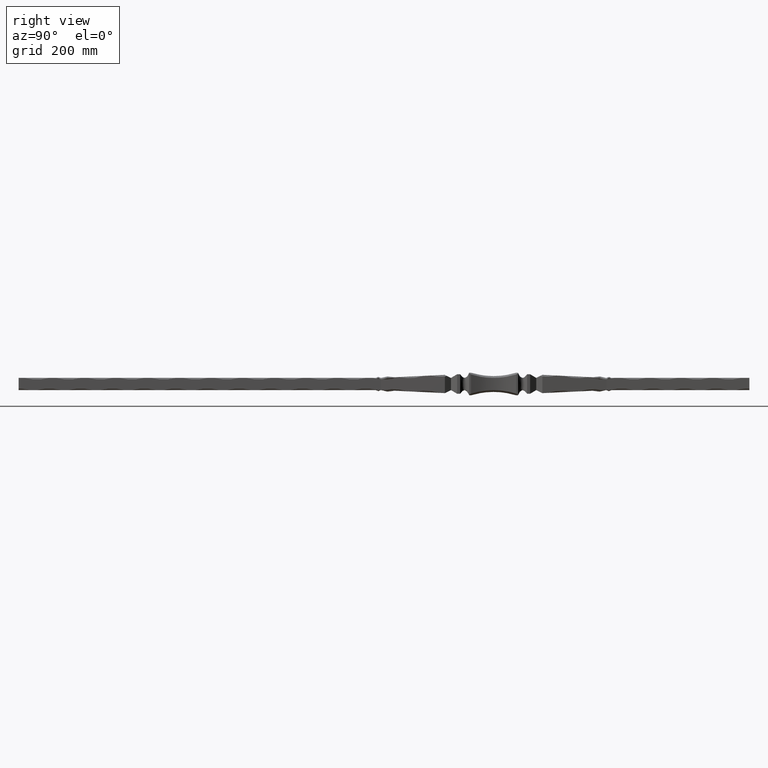
[diagram: clean part render]
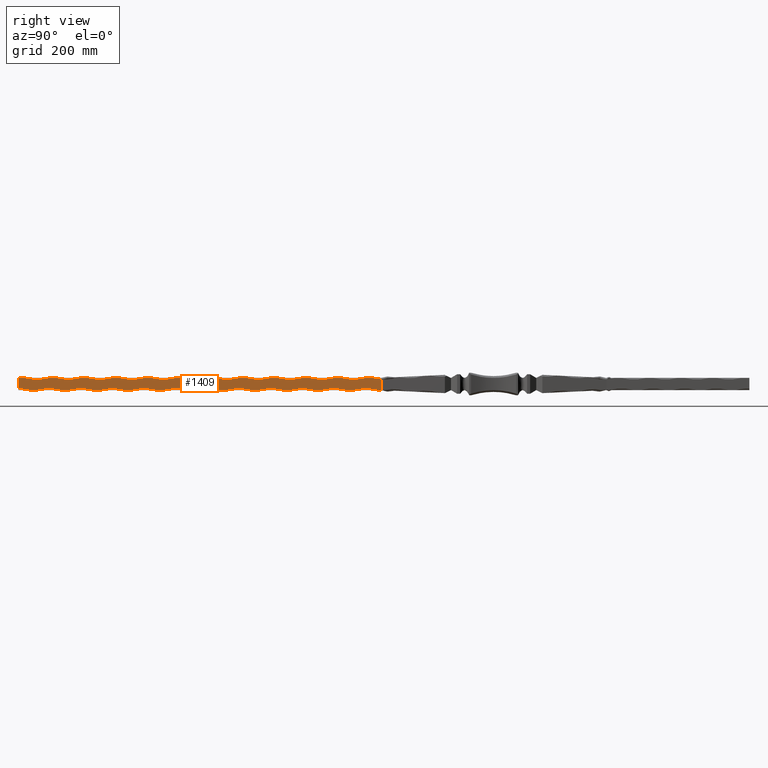
[diagram: same view with one face highlighted and labeled with its STEP entity id]
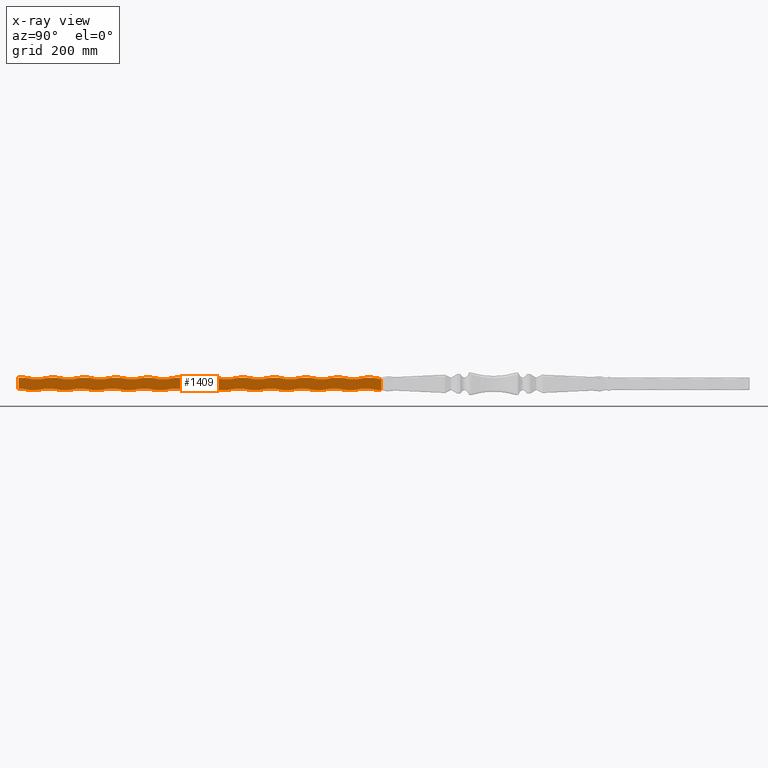
[diagram: x-ray of the same camera — body ghosted, the highlighted face saturated]
A machine part, right view. The second image highlights one B-rep face of the part: STEP entity #1409.
The next image is the same camera in x-ray: the body ghosted, the highlighted face saturated — about 0% of this face is hidden behind the body in this view.
In plain terms, the highlighted planar face has unit normal (-1, 0, 0).
Its self-contained STEP definition (entity closure, byte-faithful):
#16 = EDGE_CURVE ( 'NONE', #13468, #13027, #11197, .T. ) ;
#68 = DIRECTION ( 'NONE',  ( 0.000000000000000000, 0.000000000000000000, 1.000000000000000000 ) ) ;
#179 = AXIS2_PLACEMENT_3D ( 'NONE', #15609, #14253, #584 ) ;
#223 = DIRECTION ( 'NONE',  ( -0.000000000000000000, 0.000000000000000000, -1.000000000000000000 ) ) ;
#251 = DIRECTION ( 'NONE',  ( -1.000000000000000000, 0.000000000000000000, 0.000000000000000000 ) ) ;
#268 = AXIS2_PLACEMENT_3D ( 'NONE', #2508, #7308, #7468 ) ;
#288 = LINE ( 'NONE', #6733, #3964 ) ;
#292 = ORIENTED_EDGE ( 'NONE', *, *, #14330, .T. ) ;
#360 = DIRECTION ( 'NONE',  ( -0.000000000000000000, 1.000000000000000000, -0.000000000000000000 ) ) ;
#364 = EDGE_CURVE ( 'NONE', #14145, #10326, #4877, .T. ) ;
#422 = DIRECTION ( 'NONE',  ( -0.000000000000000000, 1.000000000000000000, -0.000000000000000000 ) ) ;
#442 = DIRECTION ( 'NONE',  ( 0.000000000000000000, 0.000000000000000000, 1.000000000000000000 ) ) ;
#443 = VECTOR ( 'NONE', #9050, 1000.000000000000000 ) ;
#449 = VERTEX_POINT ( 'NONE', #9582 ) ;
#463 = CARTESIAN_POINT ( 'NONE',  ( 10.00000000000000178, -2008.284271247461675, -9.999999999999996447 ) ) ;
#479 = CIRCLE ( 'NONE', #11884, 81.25000000000014211 ) ;
#531 = ORIENTED_EDGE ( 'NONE', *, *, #15311, .F. ) ;
#584 = DIRECTION ( 'NONE',  ( 0.000000000000000000, 0.000000000000000000, 1.000000000000000000 ) ) ;
#661 = ORIENTED_EDGE ( 'NONE', *, *, #7005, .T. ) ;
#817 = VERTEX_POINT ( 'NONE', #1868 ) ;
#889 = CARTESIAN_POINT ( 'NONE',  ( 10.00000000000000711, -646.0000000000000000, 88.75000000000015632 ) ) ;
#893 = CARTESIAN_POINT ( 'NONE',  ( 10.00000000000000178, -2008.284271247461675, -9.999999999999996447 ) ) ;
#926 = DIRECTION ( 'NONE',  ( 0.000000000000000000, 0.000000000000000000, 1.000000000000000000 ) ) ;
#957 = CARTESIAN_POINT ( 'NONE',  ( 10.00000000000012079, -762.0000000000000000, -10.00000000000003375 ) ) ;
#1027 = CARTESIAN_POINT ( 'NONE',  ( 10.00000000000000178, -2008.284271247461675, -9.999999999999996447 ) ) ;
#1132 = CARTESIAN_POINT ( 'NONE',  ( 10.00000000000000355, -386.0000000000000000, 88.75000000000017053 ) ) ;
#1154 = EDGE_CURVE ( 'NONE', #817, #2283, #5235, .T. ) ;
#1159 = ORIENTED_EDGE ( 'NONE', *, *, #10779, .T. ) ;
#1163 = CARTESIAN_POINT ( 'NONE',  ( 9.999999999999998224, -522.0000000000000000, 10.00000000000001243 ) ) ;
#1173 = CARTESIAN_POINT ( 'NONE',  ( 10.00000000000000888, -770.0000000000000000, 9.999999999999980460 ) ) ;
#1228 = EDGE_CURVE ( 'NONE', #2403, #10326, #8821, .T. ) ;
#1272 = DIRECTION ( 'NONE',  ( 0.000000000000000000, 0.000000000000000000, 1.000000000000000000 ) ) ;
#1274 = AXIS2_PLACEMENT_3D ( 'NONE', #7545, #11450, #3890 ) ;
#1303 = FACE_OUTER_BOUND ( 'NONE', #4969, .T. ) ;
#1313 = ORIENTED_EDGE ( 'NONE', *, *, #14180, .F. ) ;
#1315 = LINE ( 'NONE', #11899, #3469 ) ;
#1406 = CARTESIAN_POINT ( 'NONE',  ( 10.00000000000000178, -229.9999999999999716, 88.75000000000017053 ) ) ;
#1409 = ADVANCED_FACE ( 'NONE', ( #1303 ), #6177, .F. ) ;
#1440 = ORIENTED_EDGE ( 'NONE', *, *, #1473, .T. ) ;
#1473 = EDGE_CURVE ( 'NONE', #3601, #16010, #14538, .T. ) ;
#1576 = LINE ( 'NONE', #5205, #13189 ) ;
#1604 = EDGE_CURVE ( 'NONE', #12327, #8712, #9868, .T. ) ;
#1680 = DIRECTION ( 'NONE',  ( -0.000000000000000000, 1.000000000000000000, -0.000000000000000000 ) ) ;
#1721 = ORIENTED_EDGE ( 'NONE', *, *, #364, .T. ) ;
#1748 = ORIENTED_EDGE ( 'NONE', *, *, #4279, .T. ) ;
#1792 = EDGE_CURVE ( 'NONE', #16078, #10539, #7085, .T. ) ;
#1806 = ORIENTED_EDGE ( 'NONE', *, *, #3975, .T. ) ;
#1821 = EDGE_CURVE ( 'NONE', #6051, #11890, #4510, .T. ) ;
#1868 = CARTESIAN_POINT ( 'NONE',  ( 10.00000000000003730, -438.0000000000001137, -10.00000000000071765 ) ) ;
#1898 = DIRECTION ( 'NONE',  ( -1.000000000000000000, 0.000000000000000000, 0.000000000000000000 ) ) ;
#1941 = CARTESIAN_POINT ( 'NONE',  ( 10.00000000000000888, -750.0000000000000000, 88.75000000000015632 ) ) ;
#1949 = DIRECTION ( 'NONE',  ( -0.000000000000000000, 1.000000000000000000, -0.000000000000000000 ) ) ;
#1990 = ORIENTED_EDGE ( 'NONE', *, *, #8928, .T. ) ;
#1995 = CARTESIAN_POINT ( 'NONE',  ( 9.999999999999994671, -209.9999999999999716, 10.00000000000002487 ) ) ;
#2090 = ORIENTED_EDGE ( 'NONE', *, *, #9356, .T. ) ;
#2162 = CIRCLE ( 'NONE', #5776, 81.25000000000014211 ) ;
#2172 = DIRECTION ( 'NONE',  ( 0.000000000000000000, 0.000000000000000000, 1.000000000000000000 ) ) ;
#2272 = VERTEX_POINT ( 'NONE', #14882 ) ;
#2283 = VERTEX_POINT ( 'NONE', #4790 ) ;
#2327 = CARTESIAN_POINT ( 'NONE',  ( 10.00000000000000178, -2008.284271247461675, -9.999999999999996447 ) ) ;
#2366 = AXIS2_PLACEMENT_3D ( 'NONE', #5431, #9217, #14142 ) ;
#2403 = VERTEX_POINT ( 'NONE', #8946 ) ;
#2474 = ORIENTED_EDGE ( 'NONE', *, *, #12369, .F. ) ;
#2501 = VERTEX_POINT ( 'NONE', #5393 ) ;
#2508 = CARTESIAN_POINT ( 'NONE',  ( 10.00000000000000178, -470.0000000000000000, -88.75000000000073896 ) ) ;
#2593 = ORIENTED_EDGE ( 'NONE', *, *, #5426, .T. ) ;
#2641 = ORIENTED_EDGE ( 'NONE', *, *, #6738, .T. ) ;
#2655 = DIRECTION ( 'NONE',  ( 0.000000000000000000, 0.000000000000000000, 1.000000000000000000 ) ) ;
#2713 = DIRECTION ( 'NONE',  ( -0.000000000000000000, 1.000000000000000000, -0.000000000000000000 ) ) ;
#2760 = EDGE_CURVE ( 'NONE', #14688, #10804, #1576, .T. ) ;
#2790 = CARTESIAN_POINT ( 'NONE',  ( 10.00000000000000000, -626.0000000000000000, 10.00000000000000711 ) ) ;
#2805 = CARTESIAN_POINT ( 'NONE',  ( 10.00000000000003730, -230.0000000000000853, -10.00000000000119904 ) ) ;
#2813 = DIRECTION ( 'NONE',  ( 0.000000000000000000, 0.000000000000000000, -1.000000000000000000 ) ) ;
#2840 = CIRCLE ( 'NONE', #11602, 81.25000000000014211 ) ;
#2839 = VECTOR ( 'NONE', #12958, 1000.000000000000000 ) ;
#2891 = CARTESIAN_POINT ( 'NONE',  ( 10.00000000000000178, -2008.284271247461675, 10.00000000000000355 ) ) ;
#2913 = CARTESIAN_POINT ( 'NONE',  ( 10.00000000000000711, -614.0000000000000000, 9.999999999999980460 ) ) ;
#2983 = VERTEX_POINT ( 'NONE', #16037 ) ;
#3028 = VECTOR ( 'NONE', #11098, 1000.000000000000000 ) ;
#3249 = LINE ( 'NONE', #2891, #2839 ) ;
#3295 = CARTESIAN_POINT ( 'NONE',  ( 10.00000000000000178, -730.0000000000000000, -88.75000000000012790 ) ) ;
#3439 = CIRCLE ( 'NONE', #179, 81.25000000000015632 ) ;
#3469 = VECTOR ( 'NONE', #10812, 1000.000000000000000 ) ;
#3478 = AXIS2_PLACEMENT_3D ( 'NONE', #16125, #11172, #1272 ) ;
#3601 = VERTEX_POINT ( 'NONE', #14002 ) ;
#3671 = DIRECTION ( 'NONE',  ( 0.000000000000000000, 0.000000000000000000, 1.000000000000000000 ) ) ;
#3884 = AXIS2_PLACEMENT_3D ( 'NONE', #9749, #13396, #2172 ) ;
#3887 = VECTOR ( 'NONE', #11529, 1000.000000000000000 ) ;
#3890 = DIRECTION ( 'NONE',  ( 0.000000000000000000, 0.000000000000000000, 1.000000000000000000 ) ) ;
#3957 = ORIENTED_EDGE ( 'NONE', *, *, #16143, .T. ) ;
#3964 = VECTOR ( 'NONE', #422, 1000.000000000000000 ) ;
#3968 = VERTEX_POINT ( 'NONE', #7987 ) ;
#3975 = EDGE_CURVE ( 'NONE', #7527, #2501, #3439, .T. ) ;
#3987 = VERTEX_POINT ( 'NONE', #10502 ) ;
#4029 = DIRECTION ( 'NONE',  ( -1.000000000000000000, 0.000000000000000000, 0.000000000000000000 ) ) ;
#4087 = ORIENTED_EDGE ( 'NONE', *, *, #11887, .T. ) ;
#4116 = CARTESIAN_POINT ( 'NONE',  ( 10.00000000000000178, -418.0000000000000000, -88.75000000000085265 ) ) ;
#4161 = EDGE_CURVE ( 'NONE', #10216, #3987, #7188, .T. ) ;
#4213 = AXIS2_PLACEMENT_3D ( 'NONE', #15215, #251, #11531 ) ;
#4224 = ORIENTED_EDGE ( 'NONE', *, *, #5327, .T. ) ;
#4257 = EDGE_CURVE ( 'NONE', #6853, #4592, #6199, .T. ) ;
#4279 = EDGE_CURVE ( 'NONE', #6174, #3968, #2840, .T. ) ;
#4311 = DIRECTION ( 'NONE',  ( -0.000000000000000000, 1.000000000000000000, -0.000000000000000000 ) ) ;
#4332 = CARTESIAN_POINT ( 'NONE',  ( 10.00000000000000178, -574.0000000000000000, -88.75000000000049738 ) ) ;
#4362 = LINE ( 'NONE', #4471, #15742 ) ;
#4460 = EDGE_CURVE ( 'NONE', #15889, #14571, #9190, .T. ) ;
#4469 = ORIENTED_EDGE ( 'NONE', *, *, #1154, .T. ) ;
#4471 = CARTESIAN_POINT ( 'NONE',  ( 10.00000000000000178, -2008.284271247461675, 10.00000000000000355 ) ) ;
#4510 = LINE ( 'NONE', #12122, #13165 ) ;
#4582 = CIRCLE ( 'NONE', #9187, 81.25000000000014211 ) ;
#4592 = VERTEX_POINT ( 'NONE', #10470 ) ;
#4606 = DIRECTION ( 'NONE',  ( 0.000000000000000000, 0.000000000000000000, 1.000000000000000000 ) ) ;
#4626 = EDGE_CURVE ( 'NONE', #10724, #10804, #8182, .T. ) ;
#4790 = CARTESIAN_POINT ( 'NONE',  ( 10.00000000000000178, -397.9999999999999432, -10.00000000000071765 ) ) ;
#4822 = ORIENTED_EDGE ( 'NONE', *, *, #1792, .F. ) ;
#4844 = EDGE_CURVE ( 'NONE', #14834, #5076, #8629, .T. ) ;
#4848 = EDGE_CURVE ( 'NONE', #14688, #10353, #15248, .T. ) ;
#4877 = CIRCLE ( 'NONE', #12768, 81.25000000000015632 ) ;
#4896 = DIRECTION ( 'NONE',  ( -1.000000000000000000, 0.000000000000000000, 0.000000000000000000 ) ) ;
#4936 = EDGE_CURVE ( 'NONE', #5609, #11035, #12167, .T. ) ;
#4969 = EDGE_LOOP ( 'NONE', ( #9256, #1990, #3957, #15095, #4224, #11556, #5949, #14001, #10091, #5919, #1748, #9161, #1440, #2474, #6143, #10016, #9559, #15734, #4087, #13541, #292, #4822, #2641, #1313, #1806, #531, #1721, #7769, #10797, #5896, #14729, #10849, #2593, #9552, #10912, #1159, #11579, #14588, #11931, #14857, #12605, #2090, #9028, #4469, #661, #11297, #12991, #5573, #5225, #10173 ) ) ;
#5015 = DIRECTION ( 'NONE',  ( -1.000000000000000000, 0.000000000000000000, 0.000000000000000000 ) ) ;
#5076 = VERTEX_POINT ( 'NONE', #12465 ) ;
#5100 = CIRCLE ( 'NONE', #3478, 81.25000000000014211 ) ;
#5205 = CARTESIAN_POINT ( 'NONE',  ( 10.00000000000000178, -2008.284271247461675, 10.00000000000000355 ) ) ;
#5225 = ORIENTED_EDGE ( 'NONE', *, *, #1604, .T. ) ;
#5235 = CIRCLE ( 'NONE', #14660, 81.25000000000014211 ) ;
#5304 = DIRECTION ( 'NONE',  ( 0.000000000000000000, 0.000000000000000000, 1.000000000000000000 ) ) ;
#5327 = EDGE_CURVE ( 'NONE', #13135, #6503, #10395, .T. ) ;
#5391 = DIRECTION ( 'NONE',  ( 0.000000000000000000, 0.000000000000000000, 1.000000000000000000 ) ) ;
#5393 = CARTESIAN_POINT ( 'NONE',  ( 10.00000000000000888, -718.0000000000000000, 9.999999999999980460 ) ) ;
#5426 = EDGE_CURVE ( 'NONE', #449, #9603, #16067, .T. ) ;
#5431 = CARTESIAN_POINT ( 'NONE',  ( 10.00000000000000533, -542.0000000000000000, 88.75000000000015632 ) ) ;
#5573 = ORIENTED_EDGE ( 'NONE', *, *, #6517, .T. ) ;
#5580 = DIRECTION ( 'NONE',  ( -1.000000000000000000, 0.000000000000000000, 0.000000000000000000 ) ) ;
#5609 = VERTEX_POINT ( 'NONE', #10327 ) ;
#5630 = EDGE_CURVE ( 'NONE', #13027, #9397, #7259, .T. ) ;
#5644 = VECTOR ( 'NONE', #13404, 1000.000000000000000 ) ;
#5703 = AXIS2_PLACEMENT_3D ( 'NONE', #11717, #9335, #442 ) ;
#5709 = DIRECTION ( 'NONE',  ( -0.000000000000000000, 1.000000000000000000, -0.000000000000000000 ) ) ;
#5776 = AXIS2_PLACEMENT_3D ( 'NONE', #7608, #5015, #10040 ) ;
#5888 = CARTESIAN_POINT ( 'NONE',  ( 10.00000000000000178, -314.0000000000000000, -88.75000000000110845 ) ) ;
#5896 = ORIENTED_EDGE ( 'NONE', *, *, #16, .T. ) ;
#5919 = ORIENTED_EDGE ( 'NONE', *, *, #16060, .F. ) ;
#5949 = ORIENTED_EDGE ( 'NONE', *, *, #4161, .T. ) ;
#6010 = CARTESIAN_POINT ( 'NONE',  ( 10.00000000000000178, -522.0000000000000000, -88.75000000000062528 ) ) ;
#6051 = VERTEX_POINT ( 'NONE', #10461 ) ;
#6059 = EDGE_CURVE ( 'NONE', #9397, #449, #13767, .T. ) ;
#6084 = DIRECTION ( 'NONE',  ( -0.000000000000000000, 1.000000000000000000, -0.000000000000000000 ) ) ;
#6143 = ORIENTED_EDGE ( 'NONE', *, *, #4626, .T. ) ;
#6174 = VERTEX_POINT ( 'NONE', #15231 ) ;
#6177 = PLANE ( 'NONE',  #14554 ) ;
#6199 = LINE ( 'NONE', #463, #10143 ) ;
#6306 = AXIS2_PLACEMENT_3D ( 'NONE', #3295, #12091, #13351 ) ;
#6364 = CARTESIAN_POINT ( 'NONE',  ( 10.00000000000000178, -185.0000000000005116, 7.802100089007918626 ) ) ;
#6412 = DIRECTION ( 'NONE',  ( -0.000000000000000000, 1.000000000000000000, -0.000000000000000000 ) ) ;
#6423 = CARTESIAN_POINT ( 'NONE',  ( 10.00000000000000178, -185.0000000000000000, -9.999999999999996447 ) ) ;
#6474 = DIRECTION ( 'NONE',  ( -0.000000000000000000, 1.000000000000000000, -0.000000000000000000 ) ) ;
#6498 = CIRCLE ( 'NONE', #268, 81.25000000000014211 ) ;
#6503 = VERTEX_POINT ( 'NONE', #11016 ) ;
#6517 = EDGE_CURVE ( 'NONE', #5076, #12327, #4582, .T. ) ;
#6568 = VECTOR ( 'NONE', #6474, 1000.000000000000000 ) ;
#6670 = AXIS2_PLACEMENT_3D ( 'NONE', #1132, #12292, #2655 ) ;
#6733 = CARTESIAN_POINT ( 'NONE',  ( 10.00000000000000178, -2008.284271247461675, 10.00000000000000355 ) ) ;
#6738 = EDGE_CURVE ( 'NONE', #16078, #7403, #7830, .T. ) ;
#6782 = CARTESIAN_POINT ( 'NONE',  ( 10.00000000000000355, -334.0000000000000000, 88.75000000000017053 ) ) ;
#6835 = EDGE_CURVE ( 'NONE', #9603, #5609, #2162, .T. ) ;
#6848 = CARTESIAN_POINT ( 'NONE',  ( 10.00000000000000000, -574.0000000000000000, 10.00000000000001066 ) ) ;
#6853 = VERTEX_POINT ( 'NONE', #10144 ) ;
#6971 = CARTESIAN_POINT ( 'NONE',  ( 10.00000000000000533, -490.0000000000000000, 88.75000000000015632 ) ) ;
#7005 = EDGE_CURVE ( 'NONE', #2283, #7642, #15149, .T. ) ;
#7040 = CARTESIAN_POINT ( 'NONE',  ( 10.00000000000000178, -346.0000000000000000, -10.00000000000083844 ) ) ;
#7045 = CIRCLE ( 'NONE', #2366, 81.25000000000015632 ) ;
#7085 = LINE ( 'NONE', #10957, #443 ) ;
#7102 = DIRECTION ( 'NONE',  ( -0.000000000000000000, 1.000000000000000000, -0.000000000000000000 ) ) ;
#7115 = VECTOR ( 'NONE', #1949, 1000.000000000000000 ) ;
#7119 = DIRECTION ( 'NONE',  ( -0.000000000000000000, 1.000000000000000000, -0.000000000000000000 ) ) ;
#7165 = VERTEX_POINT ( 'NONE', #11888 ) ;
#7188 = CIRCLE ( 'NONE', #13916, 81.25000000000014211 ) ;
#7223 = VECTOR ( 'NONE', #15680, 1000.000000000000000 ) ;
#7239 = EDGE_CURVE ( 'NONE', #7642, #14834, #479, .T. ) ;
#7249 = VECTOR ( 'NONE', #2713, 1000.000000000000000 ) ;
#7259 = LINE ( 'NONE', #15273, #3887 ) ;
#7306 = CARTESIAN_POINT ( 'NONE',  ( 10.00000000000003730, -646.0000000000001137, -10.00000000000023803 ) ) ;
#7308 = DIRECTION ( 'NONE',  ( -1.000000000000000000, 0.000000000000000000, 0.000000000000000000 ) ) ;
#7394 = CARTESIAN_POINT ( 'NONE',  ( 10.00000000000000533, -510.0000000000000000, 9.999999999999980460 ) ) ;
#7403 = VERTEX_POINT ( 'NONE', #8532 ) ;
#7405 = CIRCLE ( 'NONE', #8447, 81.25000000000015632 ) ;
#7412 = CARTESIAN_POINT ( 'NONE',  ( 10.00000000000000355, -302.0000000000001705, 9.999999999999980460 ) ) ;
#7468 = DIRECTION ( 'NONE',  ( 0.000000000000000000, 0.000000000000000000, 1.000000000000000000 ) ) ;
#7527 = VERTEX_POINT ( 'NONE', #11604 ) ;
#7545 = CARTESIAN_POINT ( 'NONE',  ( 10.00000000000000355, -282.0000000000000000, 88.75000000000017053 ) ) ;
#7566 = VECTOR ( 'NONE', #1680, 1000.000000000000000 ) ;
#7608 = CARTESIAN_POINT ( 'NONE',  ( 10.00000000000000178, -677.9999999999998863, -88.75000000000025580 ) ) ;
#7642 = VERTEX_POINT ( 'NONE', #8065 ) ;
#7656 = CARTESIAN_POINT ( 'NONE',  ( 10.00000000000000178, -209.9999999999999716, -88.75000000000133582 ) ) ;
#7762 = CARTESIAN_POINT ( 'NONE',  ( 10.00000000000003730, -542.0000000000001137, -10.00000000000047784 ) ) ;
#7769 = ORIENTED_EDGE ( 'NONE', *, *, #1228, .F. ) ;
#7814 = CIRCLE ( 'NONE', #12202, 81.25000000000014211 ) ;
#7830 = CIRCLE ( 'NONE', #14498, 81.25000000000015632 ) ;
#7855 = CARTESIAN_POINT ( 'NONE',  ( 10.00000000000000178, -2008.284271247461675, 10.00000000000000355 ) ) ;
#7896 = VECTOR ( 'NONE', #10477, 1000.000000000000000 ) ;
#7954 = EDGE_CURVE ( 'NONE', #7979, #2272, #288, .T. ) ;
#7979 = VERTEX_POINT ( 'NONE', #6848 ) ;
#7987 = CARTESIAN_POINT ( 'NONE',  ( 10.00000000000000355, -354.0000000000001705, 9.999999999999980460 ) ) ;
#8065 = CARTESIAN_POINT ( 'NONE',  ( 10.00000000000003730, -386.0000000000001137, -10.00000000000083844 ) ) ;
#8182 = CIRCLE ( 'NONE', #5703, 81.25000000000015632 ) ;
#8194 = LINE ( 'NONE', #6423, #12866 ) ;
#8263 = CARTESIAN_POINT ( 'NONE',  ( 10.00000000000000178, -185.0000000000000000, -9.999999999999996447 ) ) ;
#8295 = VECTOR ( 'NONE', #8997, 1000.000000000000000 ) ;
#8447 = AXIS2_PLACEMENT_3D ( 'NONE', #13598, #8471, #926 ) ;
#8455 = LINE ( 'NONE', #7855, #7249 ) ;
#8471 = DIRECTION ( 'NONE',  ( -1.000000000000000000, 0.000000000000000000, 0.000000000000000000 ) ) ;
#8515 = CARTESIAN_POINT ( 'NONE',  ( 10.00000000000000178, -502.0000000000000000, -10.00000000000047784 ) ) ;
#8527 = CARTESIAN_POINT ( 'NONE',  ( 10.00000000000003730, -698.0000000000001137, -10.00000000000011724 ) ) ;
#8532 = CARTESIAN_POINT ( 'NONE',  ( 10.00000000000000711, -666.0000000000000000, 9.999999999999980460 ) ) ;
#8615 = LINE ( 'NONE', #14297, #9803 ) ;
#8629 = LINE ( 'NONE', #893, #11163 ) ;
#8648 = CARTESIAN_POINT ( 'NONE',  ( 10.00000000000000178, -2008.284271247461675, 10.00000000000000355 ) ) ;
#8680 = EDGE_CURVE ( 'NONE', #2983, #3987, #4362, .T. ) ;
#8712 = VERTEX_POINT ( 'NONE', #14558 ) ;
#8785 = VECTOR ( 'NONE', #7119, 1000.000000000000000 ) ;
#8821 = LINE ( 'NONE', #9484, #7223 ) ;
#8823 = EDGE_CURVE ( 'NONE', #11890, #15889, #12028, .T. ) ;
#8836 = DIRECTION ( 'NONE',  ( -1.000000000000000000, 0.000000000000000000, 0.000000000000000000 ) ) ;
#8856 = CARTESIAN_POINT ( 'NONE',  ( 10.00000000000000178, -780.0000000000000000, -7.524619114466470471 ) ) ;
#8922 = EDGE_CURVE ( 'NONE', #2983, #9363, #10859, .T. ) ;
#8928 = EDGE_CURVE ( 'NONE', #14547, #11965, #12819, .T. ) ;
#8946 = CARTESIAN_POINT ( 'NONE',  ( 10.00000000000000178, -780.0000000000000000, 10.00000000000000355 ) ) ;
#8997 = DIRECTION ( 'NONE',  ( -0.000000000000000000, 1.000000000000000000, -0.000000000000000000 ) ) ;
#9028 = ORIENTED_EDGE ( 'NONE', *, *, #14084, .T. ) ;
#9050 = DIRECTION ( 'NONE',  ( -0.000000000000000000, 1.000000000000000000, -0.000000000000000000 ) ) ;
#9061 = VECTOR ( 'NONE', #6084, 1000.000000000000000 ) ;
#9068 = LINE ( 'NONE', #11031, #12183 ) ;
#9097 = CARTESIAN_POINT ( 'NONE',  ( 10.00000000000000178, -2008.284271247461675, 10.00000000000000355 ) ) ;
#9110 = EDGE_CURVE ( 'NONE', #15614, #14547, #13788, .T. ) ;
#9156 = EDGE_CURVE ( 'NONE', #4592, #6051, #12613, .T. ) ;
#9161 = ORIENTED_EDGE ( 'NONE', *, *, #11280, .F. ) ;
#9170 = LINE ( 'NONE', #11758, #7566 ) ;
#9187 = AXIS2_PLACEMENT_3D ( 'NONE', #5888, #15795, #15854 ) ;
#9190 = LINE ( 'NONE', #1027, #8785 ) ;
#9217 = DIRECTION ( 'NONE',  ( -1.000000000000000000, 0.000000000000000000, 0.000000000000000000 ) ) ;
#9256 = ORIENTED_EDGE ( 'NONE', *, *, #9110, .T. ) ;
#9314 = CARTESIAN_POINT ( 'NONE',  ( 10.00000000000003730, -750.0000000000001137, -9.999999999999996447 ) ) ;
#9335 = DIRECTION ( 'NONE',  ( -1.000000000000000000, 0.000000000000000000, 0.000000000000000000 ) ) ;
#9356 = EDGE_CURVE ( 'NONE', #14571, #7165, #6498, .T. ) ;
#9363 = VERTEX_POINT ( 'NONE', #7412 ) ;
#9397 = VERTEX_POINT ( 'NONE', #9314 ) ;
#9471 = DIRECTION ( 'NONE',  ( -1.000000000000000000, 0.000000000000000000, 0.000000000000000000 ) ) ;
#9484 = CARTESIAN_POINT ( 'NONE',  ( 10.00000000000000178, -2008.284271247461675, 10.00000000000000355 ) ) ;
#9529 = VERTEX_POINT ( 'NONE', #8263 ) ;
#9539 = CARTESIAN_POINT ( 'NONE',  ( 10.00000000000000178, -2008.284271247461675, -9.999999999999996447 ) ) ;
#9552 = ORIENTED_EDGE ( 'NONE', *, *, #6835, .T. ) ;
#9559 = ORIENTED_EDGE ( 'NONE', *, *, #4848, .T. ) ;
#9582 = CARTESIAN_POINT ( 'NONE',  ( 10.00000000000000178, -710.0000000000000000, -9.999999999999996447 ) ) ;
#9603 = VERTEX_POINT ( 'NONE', #8527 ) ;
#9608 = CARTESIAN_POINT ( 'NONE',  ( 9.999999999999998224, -418.0000000000000000, 10.00000000000001599 ) ) ;
#9749 = CARTESIAN_POINT ( 'NONE',  ( 10.00000000000000178, -178.0000000000000568, 88.75000000000017053 ) ) ;
#9803 = VECTOR ( 'NONE', #360, 1000.000000000000000 ) ;
#9868 = LINE ( 'NONE', #10423, #7896 ) ;
#10016 = ORIENTED_EDGE ( 'NONE', *, *, #2760, .F. ) ;
#10027 = AXIS2_PLACEMENT_3D ( 'NONE', #6010, #4896, #3671 ) ;
#10040 = DIRECTION ( 'NONE',  ( 0.000000000000000000, 0.000000000000000000, 1.000000000000000000 ) ) ;
#10091 = ORIENTED_EDGE ( 'NONE', *, *, #8922, .T. ) ;
#10132 = CARTESIAN_POINT ( 'NONE',  ( 10.00000000000000178, -2008.284271247461675, 10.00000000000000355 ) ) ;
#10143 = VECTOR ( 'NONE', #4311, 1000.000000000000000 ) ;
#10144 = CARTESIAN_POINT ( 'NONE',  ( 10.00000000000000178, -606.0000000000000000, -10.00000000000023803 ) ) ;
#10173 = ORIENTED_EDGE ( 'NONE', *, *, #14258, .T. ) ;
#10216 = VERTEX_POINT ( 'NONE', #1995 ) ;
#10326 = VERTEX_POINT ( 'NONE', #1173 ) ;
#10327 = CARTESIAN_POINT ( 'NONE',  ( 10.00000000000000178, -657.9999999999998863, -10.00000000000011724 ) ) ;
#10345 = AXIS2_PLACEMENT_3D ( 'NONE', #7656, #15032, #68 ) ;
#10353 = VERTEX_POINT ( 'NONE', #7394 ) ;
#10379 = CARTESIAN_POINT ( 'NONE',  ( 10.00000000000000178, -780.0000000000000000, -9.999999999999996447 ) ) ;
#10395 = CIRCLE ( 'NONE', #3884, 81.25000000000014211 ) ;
#10423 = CARTESIAN_POINT ( 'NONE',  ( 10.00000000000000178, -2008.284271247461675, -9.999999999999996447 ) ) ;
#10461 = CARTESIAN_POINT ( 'NONE',  ( 10.00000000000000178, -553.9999999999998863, -10.00000000000035705 ) ) ;
#10470 = CARTESIAN_POINT ( 'NONE',  ( 10.00000000000003730, -594.0000000000001137, -10.00000000000035705 ) ) ;
#10477 = DIRECTION ( 'NONE',  ( -0.000000000000000000, 1.000000000000000000, -0.000000000000000000 ) ) ;
#10502 = CARTESIAN_POINT ( 'NONE',  ( 10.00000000000000178, -250.0000000000001137, 9.999999999999980460 ) ) ;
#10511 = CARTESIAN_POINT ( 'NONE',  ( 10.00000000000000178, -2008.284271247461675, -9.999999999999996447 ) ) ;
#10539 = VERTEX_POINT ( 'NONE', #2913 ) ;
#10597 = DIRECTION ( 'NONE',  ( 0.000000000000000000, 0.000000000000000000, 1.000000000000000000 ) ) ;
#10677 = DIRECTION ( 'NONE',  ( 0.000000000000000000, 0.000000000000000000, 1.000000000000000000 ) ) ;
#10724 = VERTEX_POINT ( 'NONE', #9608 ) ;
#10758 = CARTESIAN_POINT ( 'NONE',  ( 10.00000000000000178, -262.0000000000000000, -88.75000000000122213 ) ) ;
#10776 = DIRECTION ( 'NONE',  ( 0.000000000000000000, 0.000000000000000000, 1.000000000000000000 ) ) ;
#10779 = EDGE_CURVE ( 'NONE', #11035, #6853, #5100, .T. ) ;
#10797 = ORIENTED_EDGE ( 'NONE', *, *, #12436, .T. ) ;
#10800 = EDGE_CURVE ( 'NONE', #15978, #10353, #11219, .T. ) ;
#10804 = VERTEX_POINT ( 'NONE', #15244 ) ;
#10812 = DIRECTION ( 'NONE',  ( -0.000000000000000000, 1.000000000000000000, -0.000000000000000000 ) ) ;
#10849 = ORIENTED_EDGE ( 'NONE', *, *, #6059, .T. ) ;
#10859 = CIRCLE ( 'NONE', #1274, 81.25000000000014211 ) ;
#10881 = DIRECTION ( 'NONE',  ( -1.000000000000000000, 0.000000000000000000, 0.000000000000000000 ) ) ;
#10912 = ORIENTED_EDGE ( 'NONE', *, *, #4936, .T. ) ;
#10957 = CARTESIAN_POINT ( 'NONE',  ( 10.00000000000000178, -2008.284271247461675, 10.00000000000000355 ) ) ;
#10988 = VECTOR ( 'NONE', #2813, 1000.000000000000000 ) ;
#11016 = CARTESIAN_POINT ( 'NONE',  ( 10.00000000000000178, -198.0000000000001705, 9.999999999999980460 ) ) ;
#11031 = CARTESIAN_POINT ( 'NONE',  ( 10.00000000000000178, -2008.284271247461675, 10.00000000000000355 ) ) ;
#11035 = VERTEX_POINT ( 'NONE', #7306 ) ;
#11085 = DIRECTION ( 'NONE',  ( 0.000000000000000000, 0.000000000000000000, 1.000000000000000000 ) ) ;
#11098 = DIRECTION ( 'NONE',  ( -0.000000000000000000, 1.000000000000000000, -0.000000000000000000 ) ) ;
#11163 = VECTOR ( 'NONE', #5709, 1000.000000000000000 ) ;
#11172 = DIRECTION ( 'NONE',  ( -1.000000000000000000, 0.000000000000000000, 0.000000000000000000 ) ) ;
#11197 = CIRCLE ( 'NONE', #4213, 81.25000000000014211 ) ;
#11219 = LINE ( 'NONE', #10132, #8295 ) ;
#11280 = EDGE_CURVE ( 'NONE', #3601, #3968, #9068, .T. ) ;
#11297 = ORIENTED_EDGE ( 'NONE', *, *, #7239, .T. ) ;
#11450 = DIRECTION ( 'NONE',  ( -1.000000000000000000, 0.000000000000000000, 0.000000000000000000 ) ) ;
#11518 = CARTESIAN_POINT ( 'NONE',  ( 10.00000000000003730, -490.0000000000001137, -10.00000000000059863 ) ) ;
#11529 = DIRECTION ( 'NONE',  ( -0.000000000000000000, 1.000000000000000000, -0.000000000000000000 ) ) ;
#11531 = DIRECTION ( 'NONE',  ( 0.000000000000000000, 0.000000000000000000, 1.000000000000000000 ) ) ;
#11556 = ORIENTED_EDGE ( 'NONE', *, *, #15112, .F. ) ;
#11579 = ORIENTED_EDGE ( 'NONE', *, *, #4257, .T. ) ;
#11602 = AXIS2_PLACEMENT_3D ( 'NONE', #6782, #14293, #10597 ) ;
#11604 = CARTESIAN_POINT ( 'NONE',  ( 10.00000000000000178, -677.9999999999998863, 10.00000000000000533 ) ) ;
#11622 = CARTESIAN_POINT ( 'NONE',  ( 10.00000000000000178, -294.0000000000000000, -10.00000000000095923 ) ) ;
#11717 = CARTESIAN_POINT ( 'NONE',  ( 10.00000000000000533, -438.0000000000000000, 88.75000000000015632 ) ) ;
#11758 = CARTESIAN_POINT ( 'NONE',  ( 10.00000000000000178, -2008.284271247461675, -9.999999999999996447 ) ) ;
#11884 = AXIS2_PLACEMENT_3D ( 'NONE', #13643, #8836, #13798 ) ;
#11885 = LINE ( 'NONE', #9097, #6568 ) ;
#11887 = EDGE_CURVE ( 'NONE', #15978, #2272, #7045, .T. ) ;
#11888 = CARTESIAN_POINT ( 'NONE',  ( 10.00000000000000178, -449.9999999999999432, -10.00000000000059863 ) ) ;
#11890 = VERTEX_POINT ( 'NONE', #7762 ) ;
#11899 = CARTESIAN_POINT ( 'NONE',  ( 10.00000000000000178, -2008.284271247461675, 10.00000000000000355 ) ) ;
#11931 = ORIENTED_EDGE ( 'NONE', *, *, #1821, .T. ) ;
#11965 = VERTEX_POINT ( 'NONE', #15503 ) ;
#12028 = CIRCLE ( 'NONE', #10027, 81.25000000000014211 ) ;
#12091 = DIRECTION ( 'NONE',  ( -1.000000000000000000, 0.000000000000000000, 0.000000000000000000 ) ) ;
#12122 = CARTESIAN_POINT ( 'NONE',  ( 10.00000000000000178, -2008.284271247461675, -9.999999999999996447 ) ) ;
#12143 = CARTESIAN_POINT ( 'NONE',  ( 10.00000000000000178, -2008.284271247461675, -9.999999999999996447 ) ) ;
#12167 = LINE ( 'NONE', #12143, #5644 ) ;
#12182 = DIRECTION ( 'NONE',  ( -0.000000000000000000, 1.000000000000000000, -0.000000000000000000 ) ) ;
#12183 = VECTOR ( 'NONE', #13605, 1000.000000000000000 ) ;
#12202 = AXIS2_PLACEMENT_3D ( 'NONE', #10758, #5580, #13274 ) ;
#12292 = DIRECTION ( 'NONE',  ( -1.000000000000000000, 0.000000000000000000, 0.000000000000000000 ) ) ;
#12327 = VERTEX_POINT ( 'NONE', #11622 ) ;
#12369 = EDGE_CURVE ( 'NONE', #10724, #16010, #8455, .T. ) ;
#12436 = EDGE_CURVE ( 'NONE', #2403, #13468, #14295, .T. ) ;
#12465 = CARTESIAN_POINT ( 'NONE',  ( 10.00000000000003730, -334.0000000000001137, -10.00000000000095923 ) ) ;
#12605 = ORIENTED_EDGE ( 'NONE', *, *, #4460, .T. ) ;
#12613 = CIRCLE ( 'NONE', #14515, 81.25000000000014211 ) ;
#12768 = AXIS2_PLACEMENT_3D ( 'NONE', #1941, #9471, #14364 ) ;
#12819 = CIRCLE ( 'NONE', #10345, 81.25000000000014211 ) ;
#12866 = VECTOR ( 'NONE', #223, 1000.000000000000000 ) ;
#12919 = DIRECTION ( 'NONE',  ( -1.000000000000000000, 0.000000000000000000, 0.000000000000000000 ) ) ;
#12958 = DIRECTION ( 'NONE',  ( -0.000000000000000000, 1.000000000000000000, -0.000000000000000000 ) ) ;
#12991 = ORIENTED_EDGE ( 'NONE', *, *, #4844, .T. ) ;
#12997 = CARTESIAN_POINT ( 'NONE',  ( 10.00000000000000178, -730.0000000000000000, 10.00000000000000355 ) ) ;
#13027 = VERTEX_POINT ( 'NONE', #957 ) ;
#13135 = VERTEX_POINT ( 'NONE', #6364 ) ;
#13165 = VECTOR ( 'NONE', #12182, 1000.000000000000000 ) ;
#13189 = VECTOR ( 'NONE', #6412, 1000.000000000000000 ) ;
#13274 = DIRECTION ( 'NONE',  ( 0.000000000000000000, 0.000000000000000000, 1.000000000000000000 ) ) ;
#13351 = DIRECTION ( 'NONE',  ( 0.000000000000000000, 0.000000000000000000, 1.000000000000000000 ) ) ;
#13396 = DIRECTION ( 'NONE',  ( -1.000000000000000000, 0.000000000000000000, 0.000000000000000000 ) ) ;
#13404 = DIRECTION ( 'NONE',  ( -0.000000000000000000, 1.000000000000000000, -0.000000000000000000 ) ) ;
#13468 = VERTEX_POINT ( 'NONE', #8856 ) ;
#13509 = AXIS2_PLACEMENT_3D ( 'NONE', #6971, #15727, #10776 ) ;
#13541 = ORIENTED_EDGE ( 'NONE', *, *, #7954, .F. ) ;
#13598 = CARTESIAN_POINT ( 'NONE',  ( 10.00000000000000711, -594.0000000000000000, 88.75000000000015632 ) ) ;
#13605 = DIRECTION ( 'NONE',  ( -0.000000000000000000, 1.000000000000000000, -0.000000000000000000 ) ) ;
#13643 = CARTESIAN_POINT ( 'NONE',  ( 10.00000000000000178, -366.0000000000000000, -88.75000000000098055 ) ) ;
#13767 = CIRCLE ( 'NONE', #6306, 81.25000000000014211 ) ;
#13788 = LINE ( 'NONE', #9539, #7115 ) ;
#13798 = DIRECTION ( 'NONE',  ( 0.000000000000000000, 0.000000000000000000, 1.000000000000000000 ) ) ;
#13910 = CARTESIAN_POINT ( 'NONE',  ( 10.00000000000000355, -406.0000000000001137, 9.999999999999980460 ) ) ;
#13916 = AXIS2_PLACEMENT_3D ( 'NONE', #1406, #4029, #5304 ) ;
#14001 = ORIENTED_EDGE ( 'NONE', *, *, #8680, .F. ) ;
#14002 = CARTESIAN_POINT ( 'NONE',  ( 9.999999999999996447, -366.0000000000000000, 10.00000000000001954 ) ) ;
#14084 = EDGE_CURVE ( 'NONE', #7165, #817, #8615, .T. ) ;
#14142 = DIRECTION ( 'NONE',  ( 0.000000000000000000, 0.000000000000000000, 1.000000000000000000 ) ) ;
#14145 = VERTEX_POINT ( 'NONE', #12997 ) ;
#14180 = EDGE_CURVE ( 'NONE', #7527, #7403, #1315, .T. ) ;
#14253 = DIRECTION ( 'NONE',  ( -1.000000000000000000, 0.000000000000000000, 0.000000000000000000 ) ) ;
#14258 = EDGE_CURVE ( 'NONE', #8712, #15614, #7814, .T. ) ;
#14276 = CARTESIAN_POINT ( 'NONE',  ( 9.999999999999998224, -470.0000000000000000, 10.00000000000001421 ) ) ;
#14293 = DIRECTION ( 'NONE',  ( -1.000000000000000000, 0.000000000000000000, 0.000000000000000000 ) ) ;
#14295 = LINE ( 'NONE', #10379, #10988 ) ;
#14297 = CARTESIAN_POINT ( 'NONE',  ( 10.00000000000000178, -2008.284271247461675, -9.999999999999996447 ) ) ;
#14330 = EDGE_CURVE ( 'NONE', #7979, #10539, #7405, .T. ) ;
#14364 = DIRECTION ( 'NONE',  ( 0.000000000000000000, 0.000000000000000000, 1.000000000000000000 ) ) ;
#14498 = AXIS2_PLACEMENT_3D ( 'NONE', #889, #10881, #4606 ) ;
#14515 = AXIS2_PLACEMENT_3D ( 'NONE', #4332, #1898, #10677 ) ;
#14538 = CIRCLE ( 'NONE', #6670, 81.25000000000014211 ) ;
#14547 = VERTEX_POINT ( 'NONE', #2805 ) ;
#14554 = AXIS2_PLACEMENT_3D ( 'NONE', #16189, #16034, #11085 ) ;
#14558 = CARTESIAN_POINT ( 'NONE',  ( 10.00000000000003730, -282.0000000000001137, -10.00000000000108002 ) ) ;
#14571 = VERTEX_POINT ( 'NONE', #11518 ) ;
#14588 = ORIENTED_EDGE ( 'NONE', *, *, #9156, .T. ) ;
#14660 = AXIS2_PLACEMENT_3D ( 'NONE', #4116, #12919, #5391 ) ;
#14688 = VERTEX_POINT ( 'NONE', #14276 ) ;
#14729 = ORIENTED_EDGE ( 'NONE', *, *, #5630, .T. ) ;
#14784 = VECTOR ( 'NONE', #15460, 1000.000000000000000 ) ;
#14834 = VERTEX_POINT ( 'NONE', #7040 ) ;
#14857 = ORIENTED_EDGE ( 'NONE', *, *, #8823, .T. ) ;
#14882 = CARTESIAN_POINT ( 'NONE',  ( 10.00000000000000533, -562.0000000000000000, 9.999999999999980460 ) ) ;
#15032 = DIRECTION ( 'NONE',  ( -1.000000000000000000, 0.000000000000000000, 0.000000000000000000 ) ) ;
#15095 = ORIENTED_EDGE ( 'NONE', *, *, #16069, .F. ) ;
#15112 = EDGE_CURVE ( 'NONE', #10216, #6503, #3249, .T. ) ;
#15149 = LINE ( 'NONE', #10511, #14784 ) ;
#15215 = CARTESIAN_POINT ( 'NONE',  ( 10.00000000000012079, -782.0000000000000000, -88.75000000000017053 ) ) ;
#15231 = CARTESIAN_POINT ( 'NONE',  ( 9.999999999999996447, -314.0000000000000000, 10.00000000000002132 ) ) ;
#15244 = CARTESIAN_POINT ( 'NONE',  ( 10.00000000000000533, -458.0000000000000568, 9.999999999999980460 ) ) ;
#15248 = CIRCLE ( 'NONE', #13509, 81.25000000000015632 ) ;
#15273 = CARTESIAN_POINT ( 'NONE',  ( 10.00000000000000178, -2008.284271247461675, -9.999999999999996447 ) ) ;
#15277 = CARTESIAN_POINT ( 'NONE',  ( 10.00000000000000178, -242.0000000000000000, -10.00000000000108002 ) ) ;
#15311 = EDGE_CURVE ( 'NONE', #14145, #2501, #16181, .T. ) ;
#15460 = DIRECTION ( 'NONE',  ( -0.000000000000000000, 1.000000000000000000, -0.000000000000000000 ) ) ;
#15503 = CARTESIAN_POINT ( 'NONE',  ( 10.00000000000000178, -189.9999999999999432, -10.00000000000119904 ) ) ;
#15609 = CARTESIAN_POINT ( 'NONE',  ( 10.00000000000000888, -698.0000000000000000, 88.75000000000015632 ) ) ;
#15614 = VERTEX_POINT ( 'NONE', #15277 ) ;
#15680 = DIRECTION ( 'NONE',  ( -0.000000000000000000, 1.000000000000000000, -0.000000000000000000 ) ) ;
#15727 = DIRECTION ( 'NONE',  ( -1.000000000000000000, 0.000000000000000000, 0.000000000000000000 ) ) ;
#15734 = ORIENTED_EDGE ( 'NONE', *, *, #10800, .F. ) ;
#15742 = VECTOR ( 'NONE', #7102, 1000.000000000000000 ) ;
#15795 = DIRECTION ( 'NONE',  ( -1.000000000000000000, 0.000000000000000000, 0.000000000000000000 ) ) ;
#15854 = DIRECTION ( 'NONE',  ( 0.000000000000000000, 0.000000000000000000, 1.000000000000000000 ) ) ;
#15889 = VERTEX_POINT ( 'NONE', #8515 ) ;
#15978 = VERTEX_POINT ( 'NONE', #1163 ) ;
#16010 = VERTEX_POINT ( 'NONE', #13910 ) ;
#16034 = DIRECTION ( 'NONE',  ( -1.000000000000000000, 0.000000000000000000, 0.000000000000000000 ) ) ;
#16037 = CARTESIAN_POINT ( 'NONE',  ( 9.999999999999996447, -262.0000000000000000, 10.00000000000002309 ) ) ;
#16060 = EDGE_CURVE ( 'NONE', #6174, #9363, #11885, .T. ) ;
#16067 = LINE ( 'NONE', #2327, #9061 ) ;
#16069 = EDGE_CURVE ( 'NONE', #13135, #9529, #8194, .T. ) ;
#16078 = VERTEX_POINT ( 'NONE', #2790 ) ;
#16125 = CARTESIAN_POINT ( 'NONE',  ( 10.00000000000000178, -626.0000000000000000, -88.75000000000038369 ) ) ;
#16143 = EDGE_CURVE ( 'NONE', #11965, #9529, #9170, .T. ) ;
#16181 = LINE ( 'NONE', #8648, #3028 ) ;
#16189 = CARTESIAN_POINT ( 'NONE',  ( 10.00000000000000178, -2008.284271247461675, -9.999999999999996447 ) ) ;